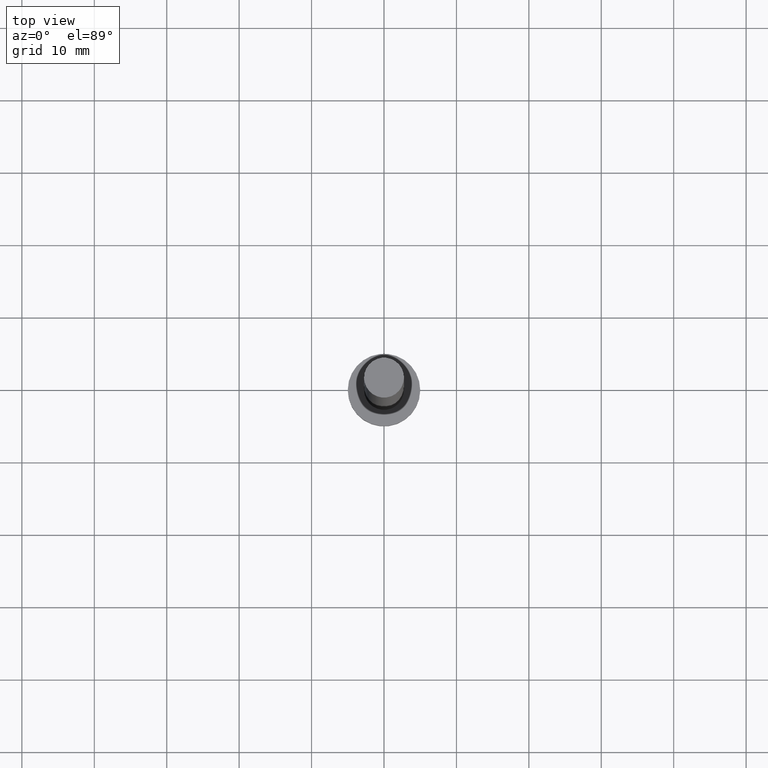
[diagram: clean part render]
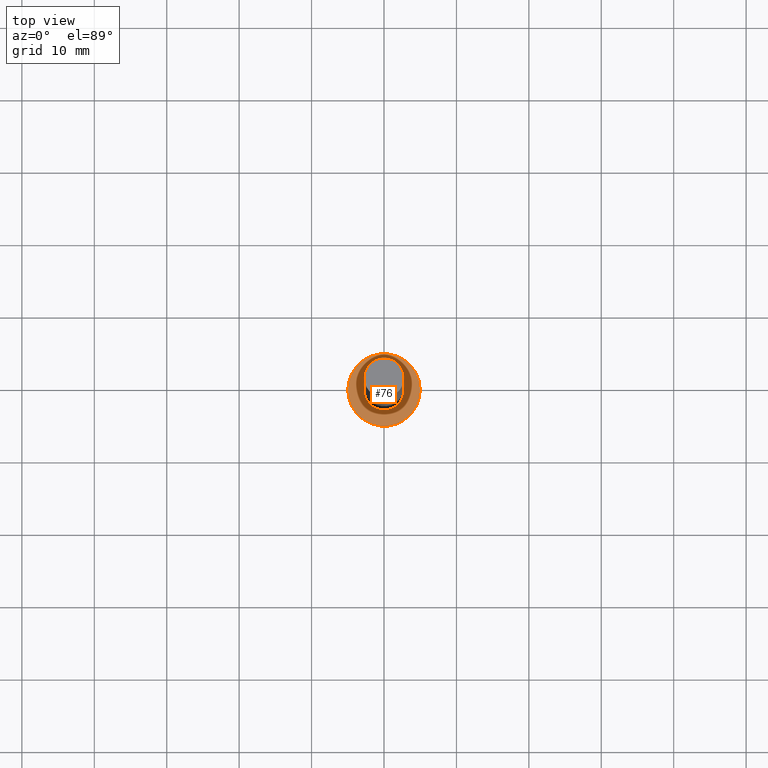
[diagram: same view with one face highlighted and labeled with its STEP entity id]
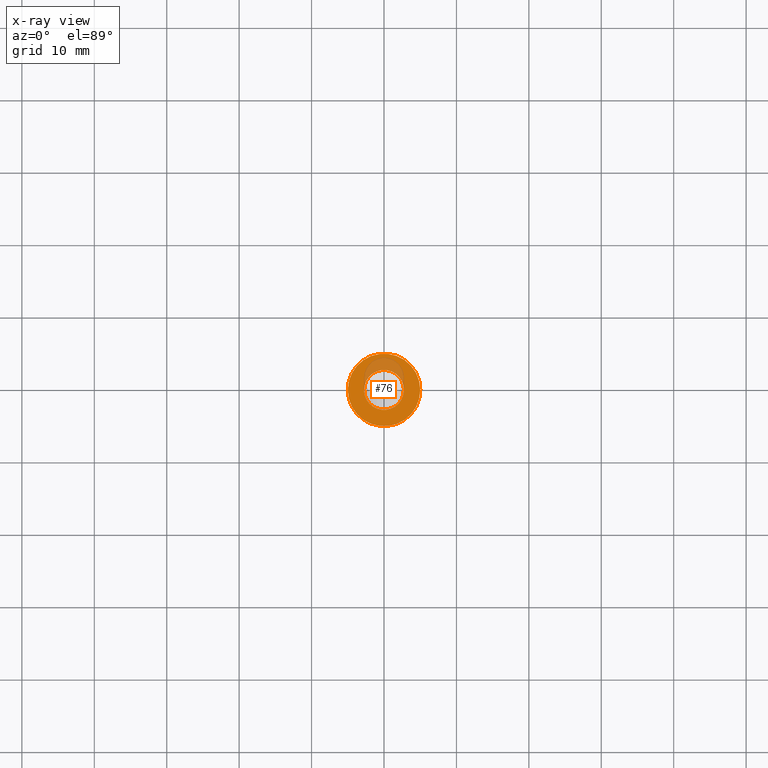
[diagram: x-ray of the same camera — body ghosted, the highlighted face saturated]
A machine part, top view. The second image highlights one B-rep face of the part: STEP entity #76.
The next image is the same camera in x-ray: the body ghosted, the highlighted face saturated — about 17% of this face is hidden behind the body in this view.
In plain terms, the highlighted planar face has unit normal (0, 0, 1).
Its self-contained STEP definition (entity closure, byte-faithful):
#3 = EDGE_LOOP ( 'NONE', ( #229, #173 ) ) ;
#7 = CARTESIAN_POINT ( 'NONE',  ( 0.000000000000000000, 0.000000000000000000, 3.000000000000000000 ) ) ;
#8 = EDGE_CURVE ( 'NONE', #35, #216, #79, .T. ) ;
#9 = DIRECTION ( 'NONE',  ( 1.000000000000000000, 0.000000000000000000, 0.000000000000000000 ) ) ;
#30 = PLANE ( 'NONE',  #112 ) ;
#34 = EDGE_LOOP ( 'NONE', ( #111, #63 ) ) ;
#35 = VERTEX_POINT ( 'NONE', #44 ) ;
#41 = CARTESIAN_POINT ( 'NONE',  ( 0.000000000000000000, 0.000000000000000000, 3.000000000000000000 ) ) ;
#44 = CARTESIAN_POINT ( 'NONE',  ( 2.750000000000000000, 3.367778697655220519E-16, 3.000000000000000000 ) ) ;
#46 = CARTESIAN_POINT ( 'NONE',  ( 0.000000000000000000, 0.000000000000000000, 3.000000000000000000 ) ) ;
#58 = DIRECTION ( 'NONE',  ( 0.000000000000000000, 0.000000000000000000, 1.000000000000000000 ) ) ;
#63 = ORIENTED_EDGE ( 'NONE', *, *, #8, .F. ) ;
#76 = ADVANCED_FACE ( 'NONE', ( #96, #180 ), #30, .T. ) ;
#78 = DIRECTION ( 'NONE',  ( 1.000000000000000000, 0.000000000000000000, -0.000000000000000000 ) ) ;
#79 = CIRCLE ( 'NONE', #245, 2.750000000000000000 ) ;
#80 = AXIS2_PLACEMENT_3D ( 'NONE', #7, #219, #183 ) ;
#91 = AXIS2_PLACEMENT_3D ( 'NONE', #46, #163, #105 ) ;
#96 = FACE_BOUND ( 'NONE', #34, .T. ) ;
#103 = VERTEX_POINT ( 'NONE', #141 ) ;
#105 = DIRECTION ( 'NONE',  ( 1.000000000000000000, 0.000000000000000000, 0.000000000000000000 ) ) ;
#111 = ORIENTED_EDGE ( 'NONE', *, *, #185, .F. ) ;
#112 = AXIS2_PLACEMENT_3D ( 'NONE', #199, #58, #78 ) ;
#131 = CIRCLE ( 'NONE', #91, 5.000000000000000000 ) ;
#135 = CIRCLE ( 'NONE', #218, 5.000000000000000000 ) ;
#141 = CARTESIAN_POINT ( 'NONE',  ( 5.000000000000000000, 6.123233995736766282E-16, 3.000000000000000000 ) ) ;
#162 = CARTESIAN_POINT ( 'NONE',  ( -5.000000000000000000, 0.000000000000000000, 3.000000000000000000 ) ) ;
#163 = DIRECTION ( 'NONE',  ( 0.000000000000000000, 0.000000000000000000, 1.000000000000000000 ) ) ;
#173 = ORIENTED_EDGE ( 'NONE', *, *, #230, .T. ) ;
#175 = CIRCLE ( 'NONE', #80, 2.750000000000000000 ) ;
#180 = FACE_OUTER_BOUND ( 'NONE', #3, .T. ) ;
#181 = CARTESIAN_POINT ( 'NONE',  ( 0.000000000000000000, 0.000000000000000000, 3.000000000000000000 ) ) ;
#183 = DIRECTION ( 'NONE',  ( 1.000000000000000000, 0.000000000000000000, 0.000000000000000000 ) ) ;
#185 = EDGE_CURVE ( 'NONE', #216, #35, #175, .T. ) ;
#199 = CARTESIAN_POINT ( 'NONE',  ( 0.000000000000000000, 0.000000000000000000, 3.000000000000000000 ) ) ;
#208 = DIRECTION ( 'NONE',  ( 0.000000000000000000, 0.000000000000000000, 1.000000000000000000 ) ) ;
#214 = EDGE_CURVE ( 'NONE', #224, #103, #131, .T. ) ;
#216 = VERTEX_POINT ( 'NONE', #228 ) ;
#218 = AXIS2_PLACEMENT_3D ( 'NONE', #181, #244, #9 ) ;
#219 = DIRECTION ( 'NONE',  ( 0.000000000000000000, 0.000000000000000000, 1.000000000000000000 ) ) ;
#224 = VERTEX_POINT ( 'NONE', #162 ) ;
#228 = CARTESIAN_POINT ( 'NONE',  ( -2.750000000000000000, 0.000000000000000000, 3.000000000000000000 ) ) ;
#229 = ORIENTED_EDGE ( 'NONE', *, *, #214, .T. ) ;
#230 = EDGE_CURVE ( 'NONE', #103, #224, #135, .T. ) ;
#244 = DIRECTION ( 'NONE',  ( 0.000000000000000000, 0.000000000000000000, 1.000000000000000000 ) ) ;
#245 = AXIS2_PLACEMENT_3D ( 'NONE', #41, #208, #254 ) ;
#254 = DIRECTION ( 'NONE',  ( 1.000000000000000000, 0.000000000000000000, 0.000000000000000000 ) ) ;